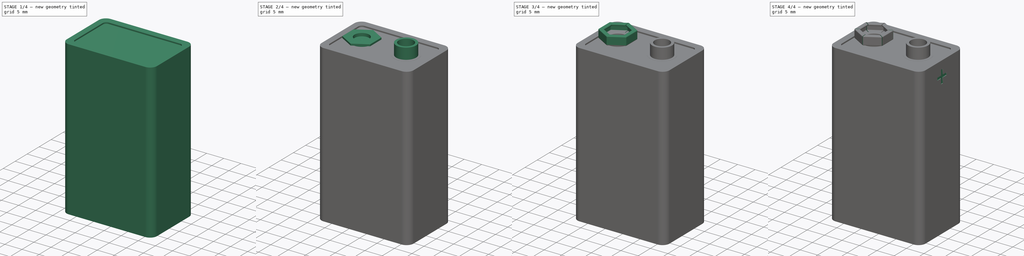
[diagram: build sequence overview — one tinted view per stage of 4, left to right]
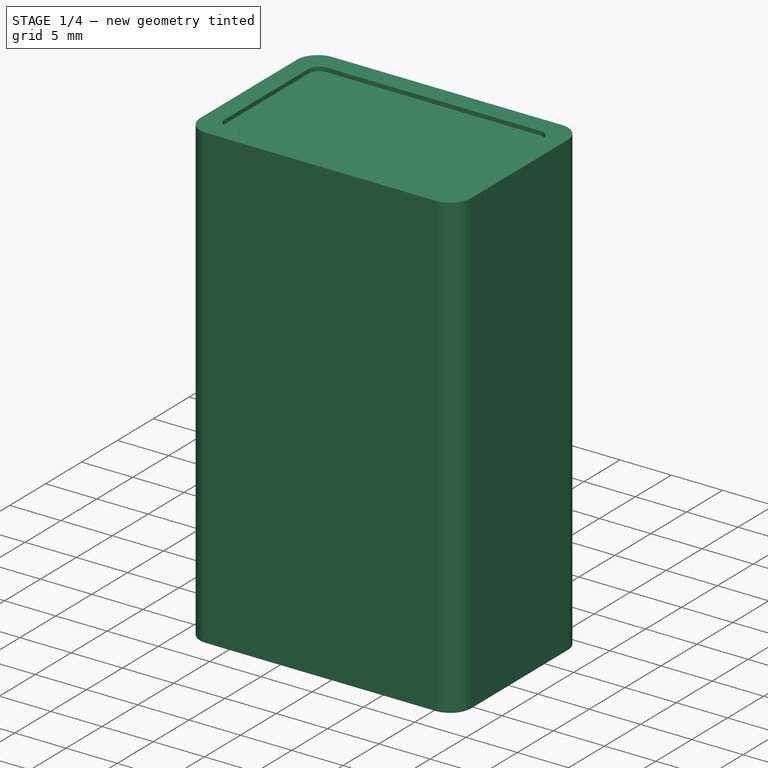
[diagram: stage 1 of 4 — iso view after this stage's code; geometry added in this stage tinted green]
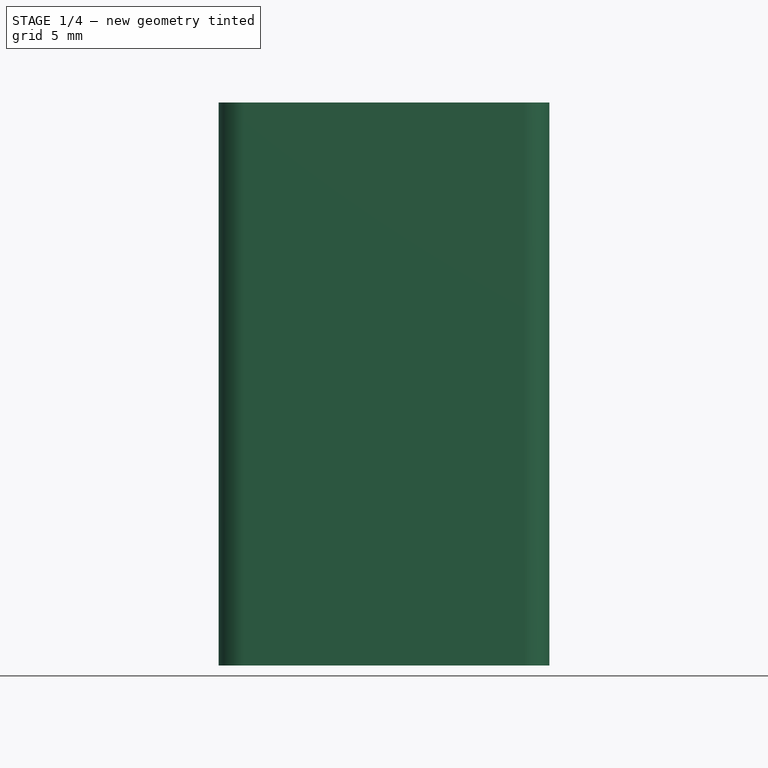
[diagram: stage 1 of 4 — front view after this stage's code; geometry added in this stage tinted green]
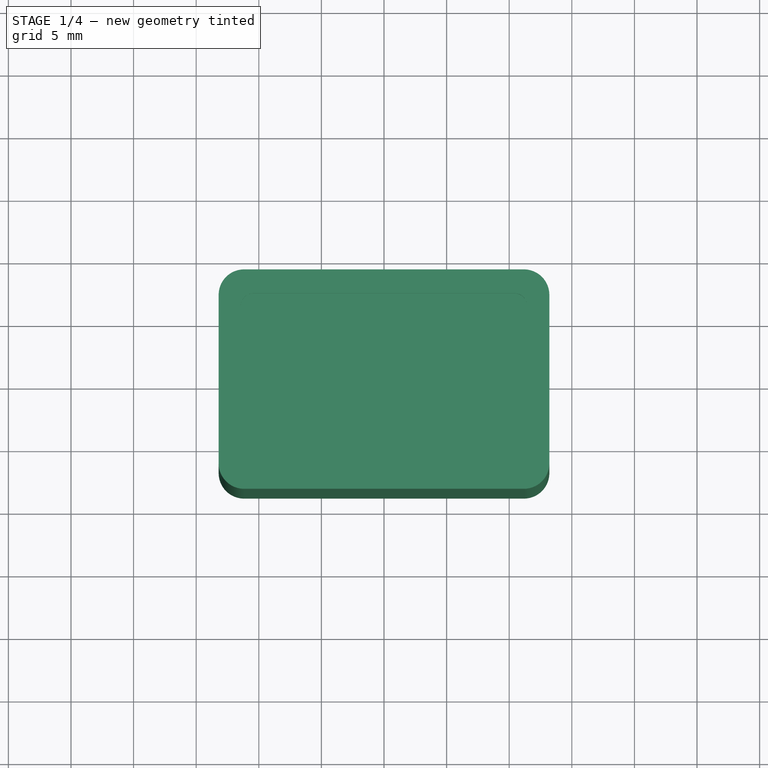
[diagram: stage 1 of 4 — top view after this stage's code; geometry added in this stage tinted green]
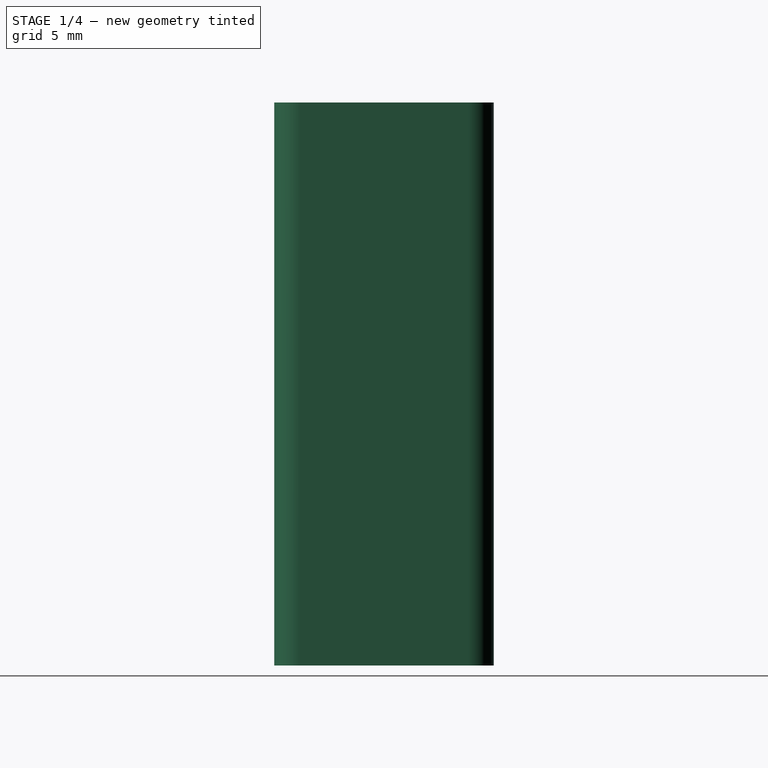
[diagram: stage 1 of 4 — right view after this stage's code; geometry added in this stage tinted green]
FCSTD DOCUMENT  (FreeCAD 0.18.4R)
Label: Baterry 9 volts
License: CreativeCommons Attribution
LicenseURL: http://creativecommons.org/licenses/by/4.0/
objects: Sketcher::SketchObject×10, PartDesign::Pad×4, PartDesign::Pocket×4, PartDesign::Line×2, PartDesign::Revolution×2, PartDesign::Mirrored×1, PartDesign::Fillet×1, PartDesign::PolarPattern×1, PartDesign::Body×1, App::Part×1
note: 36 computed .brp shape members not serialized (recipe doc carries the construction recipe); baked Part::Feature solids carry a one-line shape summary decoded from their .brp

FEATURE [Sketcher::SketchObject] Sketch
  MapMode = 5
  Support = -> [XY_Plane001]
  sketch-geometry (8):
    g0: LineSegment StartX=-11.173 StartY=8.763 StartZ=0 EndX=11.173 EndY=8.763 EndZ=0
    g1: LineSegment StartX=13.205 StartY=6.731 StartZ=0 EndX=13.205 EndY=-6.731 EndZ=0
    g2: LineSegment StartX=11.173 StartY=-8.763 StartZ=0 EndX=-11.173 EndY=-8.763 EndZ=0
    g3: LineSegment StartX=-13.205 StartY=-6.731 StartZ=0 EndX=-13.205 EndY=6.731 EndZ=0
    g4: ArcOfCircle CenterX=11.173 CenterY=6.731 CenterZ=0 NormalX=0 NormalY=0 NormalZ=1 AngleXU=0 Radius=2.032 StartAngle=1.78e-14 EndAngle=1.5708
    g5: ArcOfCircle CenterX=11.173 CenterY=-6.731 CenterZ=0 NormalX=0 NormalY=0 NormalZ=1 AngleXU=0 Radius=2.032 StartAngle=4.71239 EndAngle=6.28319
    g6: ArcOfCircle CenterX=-11.173 CenterY=-6.731 CenterZ=0 NormalX=0 NormalY=0 NormalZ=1 AngleXU=0 Radius=2.032 StartAngle=3.14159 EndAngle=4.71239
    g7: ArcOfCircle CenterX=-11.173 CenterY=6.731 CenterZ=0 NormalX=0 NormalY=0 NormalZ=1 AngleXU=0 Radius=2.032 StartAngle=1.5708 EndAngle=3.14159
  constraints (19):
    c: Horizontal(g0)
    c: Horizontal(g2)
    c: Vertical(g1)
    c: Vertical(g3)
    c: Tangent(g0,g4) = 1.5708
    c: Tangent(g1,g4) = 1.5708
    c: Tangent(g1,g5) = 1.5708
    c: Tangent(g2,g5) = 1.5708
    c: Tangent(g2,g6) = 1.5708
    c: Tangent(g3,g6) = 1.5708
    c: Tangent(g0,g7) = 1.5708
    c: Tangent(g3,g7) = 1.5708
    c: Equal(g7,g4)
    c: Equal(g4,g5)
    c: Equal(g5,g6)
    c: Symmetric(g7,g5,g-1)
    c: DistanceX(g3,g1) = 26.41
    c: DistanceY(g2,g0) = 17.526
    c: Radius(g7) = 2.032
FEATURE [PartDesign::Pad] Pad
  Length = 44.96
  Length2 = 100
  Midplane = true
  Profile = -> Sketch
  Refine = true
  Type = 0
FEATURE [Sketcher::SketchObject] Sketch001
  MapMode = 5
  Placement = pos=(0,0,-22.48) rot=(1,0,0;3.14159rad)
  Support = -> [Pad]
  sketch-geometry (8):
    g0: LineSegment StartX=-10.42 StartY=6.855 StartZ=0 EndX=10.42 EndY=6.855 EndZ=0
    g1: LineSegment StartX=11.43 StartY=5.845 StartZ=0 EndX=11.43 EndY=-5.845 EndZ=0
    g2: LineSegment StartX=10.42 StartY=-6.855 StartZ=0 EndX=-10.42 EndY=-6.855 EndZ=0
    g3: LineSegment StartX=-11.43 StartY=-5.845 StartZ=0 EndX=-11.43 EndY=5.845 EndZ=0
    g4: ArcOfCircle CenterX=10.42 CenterY=5.845 CenterZ=0 NormalX=0 NormalY=0 NormalZ=1 AngleXU=0 Radius=1.01 StartAngle=8.18e-14 EndAngle=1.5708
    g5: ArcOfCircle CenterX=10.42 CenterY=-5.845 CenterZ=0 NormalX=0 NormalY=0 NormalZ=1 AngleXU=0 Radius=1.01 StartAngle=4.71239 EndAngle=6.28319
    g6: ArcOfCircle CenterX=-10.42 CenterY=-5.845 CenterZ=0 NormalX=0 NormalY=0 NormalZ=1 AngleXU=0 Radius=1.01 StartAngle=3.14159 EndAngle=4.71239
    g7: ArcOfCircle CenterX=-10.42 CenterY=5.845 CenterZ=0 NormalX=0 NormalY=0 NormalZ=1 AngleXU=0 Radius=1.01 StartAngle=1.5708 EndAngle=3.14159
  constraints (19):
    c: Horizontal(g0)
    c: Horizontal(g2)
    c: Vertical(g1)
    c: Vertical(g3)
    c: Tangent(g0,g4) = 1.5708
    c: Tangent(g1,g4) = 1.5708
    c: Tangent(g2,g5) = 1.5708
    c: Tangent(g1,g5) = 1.5708
    c: Tangent(g2,g6) = 1.5708
    c: Tangent(g3,g6) = 1.5708
    c: Tangent(g0,g7) = 1.5708
    c: Tangent(g3,g7) = 1.5708
    c: Equal(g7,g4)
    c: Equal(g4,g5)
    c: Equal(g5,g6)
    c: Symmetric(g5,g7,g-1)
    c: DistanceX(g3,g1) = 22.86
    c: DistanceY(g2,g0) = 13.71
    c: Radius(g7) = 1.01
FEATURE [PartDesign::Pocket] Pocket
  BaseFeature = -> Pad
  Length = 0.4
  Length2 = 100
  Profile = -> Sketch001
  Refine = true
  Type = 0
FEATURE [PartDesign::Mirrored] Mirrored
  BaseFeature = -> Pocket
  MirrorPlane = -> XY_Plane001
  Originals = -> [Pocket]
  Refine = true
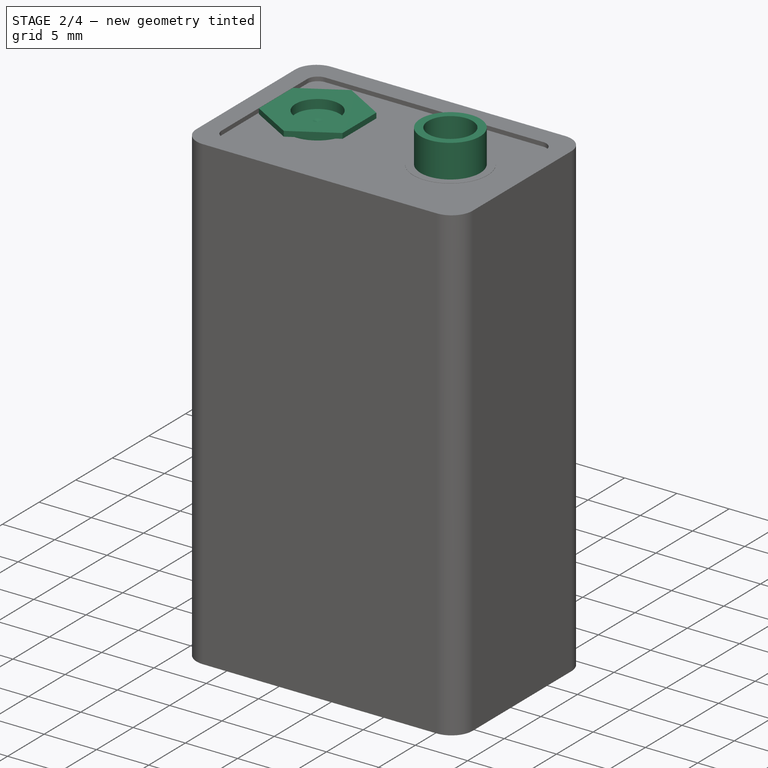
[diagram: stage 2 of 4 — iso view after this stage's code; geometry added in this stage tinted green]
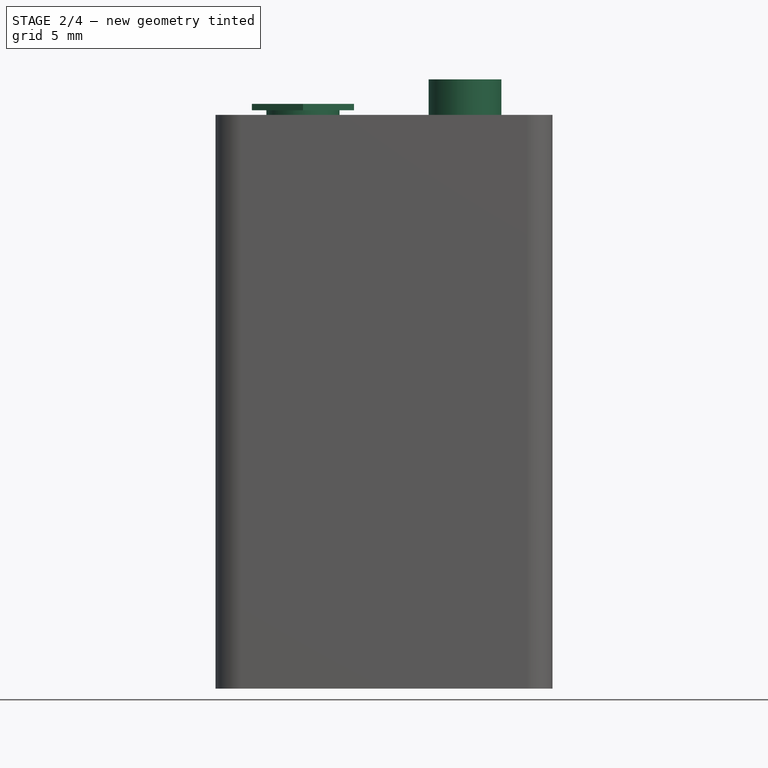
[diagram: stage 2 of 4 — front view after this stage's code; geometry added in this stage tinted green]
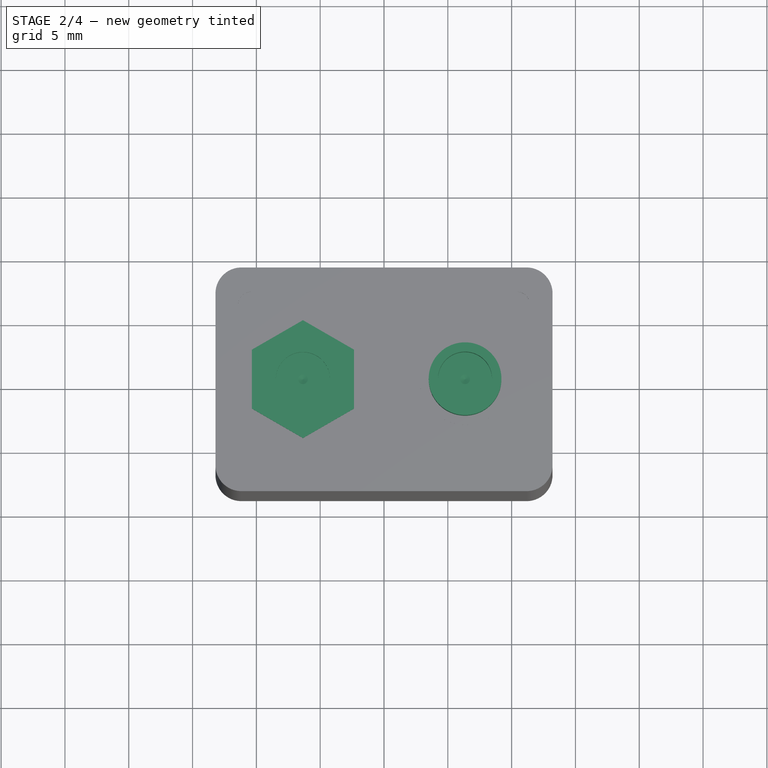
[diagram: stage 2 of 4 — top view after this stage's code; geometry added in this stage tinted green]
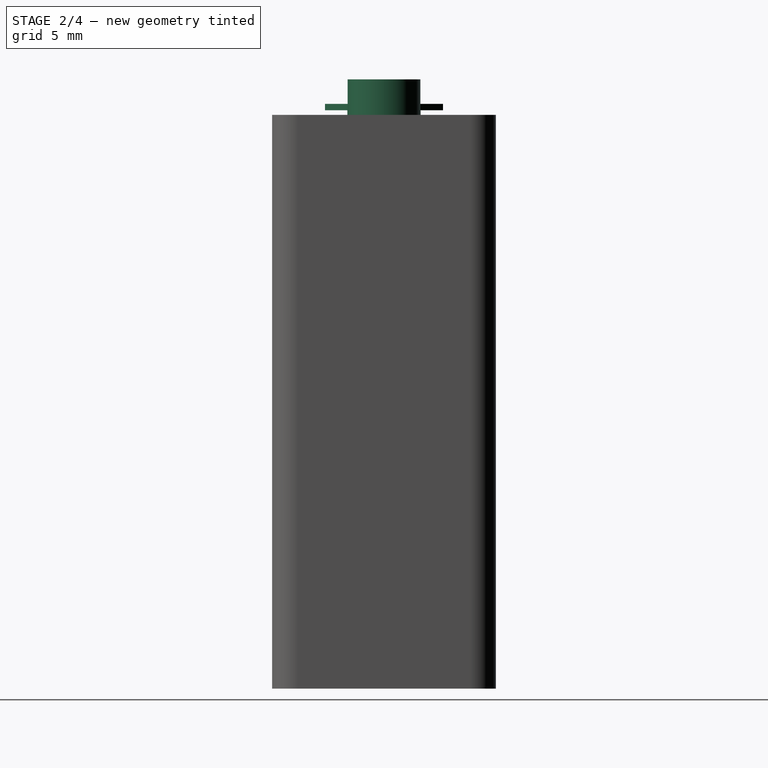
[diagram: stage 2 of 4 — right view after this stage's code; geometry added in this stage tinted green]
FEATURE [Sketcher::SketchObject] Sketch002
  ExternalGeometry = -> [Mirrored]
  MapMode = 5
  Placement = pos=(0,0,0) rot=(1,0,0;1.5708rad)
  Support = -> [XZ_Plane001]
  sketch-geometry (12):
    g0: LineSegment [constr] StartX=-6.35 StartY=23.845 StartZ=0 EndX=-6.35 EndY=21.845 EndZ=0
    g1: LineSegment [constr] StartX=-6.35 StartY=21.845 StartZ=0 EndX=6.35 EndY=21.845 EndZ=0
    g2: LineSegment [constr] StartX=6.35 StartY=21.845 StartZ=0 EndX=6.35 EndY=23.845 EndZ=0
    g3: LineSegment StartX=6.35 StartY=21.845 StartZ=0 EndX=6.35 EndY=22.353 EndZ=0
    g4: LineSegment StartX=6.35 StartY=22.353 StartZ=0 EndX=6.73 EndY=22.48 EndZ=0
    g5: LineSegment StartX=6.73 StartY=22.48 StartZ=0 EndX=8.47 EndY=22.48 EndZ=0
    g6: LineSegment StartX=8.47 StartY=22.48 StartZ=0 EndX=8.47 EndY=25.265 EndZ=0
    g7: LineSegment StartX=8.47 StartY=25.265 StartZ=0 EndX=9.2 EndY=25.265 EndZ=0
    g8: LineSegment StartX=9.2 StartY=25.265 StartZ=0 EndX=9.2 EndY=22.099 EndZ=0
    g9: LineSegment StartX=9.2 StartY=22.099 StartZ=0 EndX=9.906 EndY=22.099 EndZ=0
    g10: LineSegment StartX=9.906 StartY=22.099 StartZ=0 EndX=9.906 EndY=21.845 EndZ=0
    g11: LineSegment StartX=9.906 StartY=21.845 StartZ=0 EndX=6.35 EndY=21.845 EndZ=0
  constraints (35):
    c: Vertical(g0)
    c: Coincident(g0,g1)
    c: Coincident(g1,g2)
    c: Vertical(g2)
    c: Equal(g2,g0)
    c: Coincident(g1,g3)
    c: PointOnObject(g3,g2)
    c: Coincident(g3,g4)
    c: Coincident(g4,g5)
    c: Horizontal(g5)
    c: Coincident(g5,g6)
    c: Vertical(g6)
    c: Coincident(g6,g7)
    c: Horizontal(g7)
    c: Coincident(g7,g8)
    c: Vertical(g8)
    c: Coincident(g8,g9)
    c: Horizontal(g9)
    c: Coincident(g9,g10)
    c: Coincident(g10,g11)
    c: Coincident(g11,g3)
    c: Horizontal(g11)
    c: DistanceY(g3,g3) = 0.508
    c: PointOnObject(g4,g-3)
    c: Vertical(g10)
    c: DistanceY(g10,g10) = 0.254
    c: DistanceX(g3,g4) = 0.38
    c: DistanceY(g3,g4) = 0.635
    c: DistanceX(g11,g11) = 3.556
    c: DistanceX(g2,g7) = 2.85
    c: DistanceX(g2,g6) = 2.12
    c: Symmetric(g0,g3,g-2)
    c: DistanceX(g1,g1) = 12.7
    c: DistanceY(g10,g7) = 3.42
    c: DistanceY(g0,g0) = 2
FEATURE [PartDesign::Line] DatumLine
  AttacherType = Attacher::AttachEngineLine
  MapMode = 29
  Placement = pos=(6.35,0,-3.2e-14) rot=(0,0,1;0rad)
  Support = -> [Sketch002]
FEATURE [PartDesign::Revolution] Revolution
  Angle = 360
  Axis = (5.2e-15,2e-16,1)
  Base = (6.35,0,-3.2e-14)
  BaseFeature = -> Mirrored
  Profile = -> Sketch002
  ReferenceAxis = -> DatumLine
  Refine = true
  Reversed = true
FEATURE [Sketcher::SketchObject] Sketch003
  ExternalGeometry = -> [Revolution]
  MapMode = 5
  Placement = pos=(0,0,0) rot=(1,0,0;1.5708rad)
  Support = -> [XZ_Plane001]
  sketch-geometry (10):
    g0: LineSegment [constr] StartX=6.35 StartY=22.353 StartZ=0 EndX=6.35 EndY=22.08 EndZ=0
    g1: LineSegment [constr] StartX=6.35 StartY=22.08 StartZ=0 EndX=-6.35 EndY=22.08 EndZ=0
    g2: LineSegment [constr] StartX=-6.35 StartY=22.08 StartZ=0 EndX=-6.35 EndY=22.353 EndZ=0
    g3: LineSegment StartX=-6.35 StartY=22.08 StartZ=0 EndX=-6.35 EndY=22.353 EndZ=0
    g4: LineSegment StartX=-6.35 StartY=22.353 StartZ=0 EndX=-6.73 EndY=22.48 EndZ=0
    g5: LineSegment StartX=-6.73 StartY=22.48 StartZ=0 EndX=-8.47 EndY=22.48 EndZ=0
    g6: LineSegment StartX=-8.47 StartY=22.48 StartZ=0 EndX=-8.47 EndY=22.842 EndZ=0
    g7: LineSegment StartX=-8.47 StartY=22.842 StartZ=0 EndX=-9.2175 EndY=22.842 EndZ=0
    g8: LineSegment StartX=-9.2175 StartY=22.842 StartZ=0 EndX=-9.2175 EndY=22.08 EndZ=0
    g9: LineSegment StartX=-9.2175 StartY=22.08 StartZ=0 EndX=-6.35 EndY=22.08 EndZ=0
  constraints (29):
    c: Coincident(g0,g-3)
    c: Vertical(g0)
    c: Coincident(g0,g1)
    c: Horizontal(g1)
    c: Coincident(g1,g2)
    c: Vertical(g2)
    c: Coincident(g1,g3)
    c: PointOnObject(g3,g2)
    c: Coincident(g3,g4)
    c: Coincident(g4,g5)
    c: Horizontal(g5)
    c: Coincident(g5,g6)
    c: Vertical(g6)
    c: Coincident(g6,g7)
    c: Horizontal(g7)
    c: Coincident(g7,g8)
    c: Vertical(g8)
    c: Coincident(g8,g9)
    c: Coincident(g9,g3)
    c: Horizontal(g9)
    c: DistanceX(g9,g9) = 2.8675
    c: DistanceY(g8,g8) = 0.762
    c: Horizontal(g0,g3)
    c: PointOnObject(g4,g-4)
    c: DistanceX(g1,g1) = 12.7
    c: Equal(g2,g0)
    c: PointOnObject(g3,g-5)
    c: DistanceX(g6,g3) = 2.12
    c: DistanceX(g4,g3) = 0.38
FEATURE [PartDesign::Line] DatumLine001
  AttacherType = Attacher::AttachEngineLine
  MapMode = 29
  Placement = pos=(-6.35,0,3.517e-13) rot=(0,0,1;0rad)
  Support = -> [Sketch003]
FEATURE [PartDesign::Revolution] Revolution001
  Angle = 360
  Axis = (5.53e-14,2e-16,1)
  Base = (-6.35,0,3.517e-13)
  BaseFeature = -> Revolution
  Profile = -> Sketch003
  ReferenceAxis = -> DatumLine001
  Refine = true
FEATURE [Sketcher::SketchObject] Sketch004
  ExternalGeometry = -> [Revolution001]
  MapMode = 5
  Placement = pos=(1.2634e-12,5e-15,22.842) rot=(0,0,1;0rad)
  Support = -> [Revolution001]
  sketch-geometry (8):
    g0: Circle CenterX=-6.35 CenterY=0 CenterZ=0 NormalX=0 NormalY=0 NormalZ=1 AngleXU=0 Radius=2.12
    g1: LineSegment StartX=-6.35 StartY=4.6188 StartZ=0 EndX=-10.35 EndY=2.3094 EndZ=0
    g2: LineSegment StartX=-10.35 StartY=2.3094 StartZ=0 EndX=-10.35 EndY=-2.3094 EndZ=0
    g3: LineSegment StartX=-10.35 StartY=-2.3094 StartZ=0 EndX=-6.35 EndY=-4.6188 EndZ=0
    g4: LineSegment StartX=-6.35 StartY=-4.6188 StartZ=0 EndX=-2.35 EndY=-2.3094 EndZ=0
    g5: LineSegment StartX=-2.35 StartY=-2.3094 StartZ=0 EndX=-2.35 EndY=2.3094 EndZ=0
    g6: LineSegment StartX=-2.35 StartY=2.3094 StartZ=0 EndX=-6.35 EndY=4.6188 EndZ=0
    g7: Circle [constr] CenterX=-6.35 CenterY=0 CenterZ=0 NormalX=0 NormalY=0 NormalZ=1 AngleXU=0 Radius=4.6188
  constraints (18):
    c: Coincident(g0,g-3)
    c: Tangent(g0,g-3)
    c: Coincident(g1,g2)
    c: Coincident(g2,g3)
    c: Coincident(g3,g4)
    c: Coincident(g4,g5)
    c: Coincident(g5,g6)
    c: Coincident(g6,g1)
    c: Equal(g1, g2-g6) x5
    c: PointOnObject(g1,g7)
    c: PointOnObject(g2,g7)
    c: PointOnObject(g3,g7)
    c: PointOnObject(g4,g7)
    c: PointOnObject(g5,g7)
    c: PointOnObject(g6,g7)
    c: Coincident(g7,g0)
    c: Horizontal(g5,g1)
    c: DistanceX(g1,g5) = 8
FEATURE [PartDesign::Pad] Pad001
  BaseFeature = -> Revolution001
  Length = 0.5
  Length2 = 100
  Profile = -> Sketch004
  Refine = true
  Type = 0
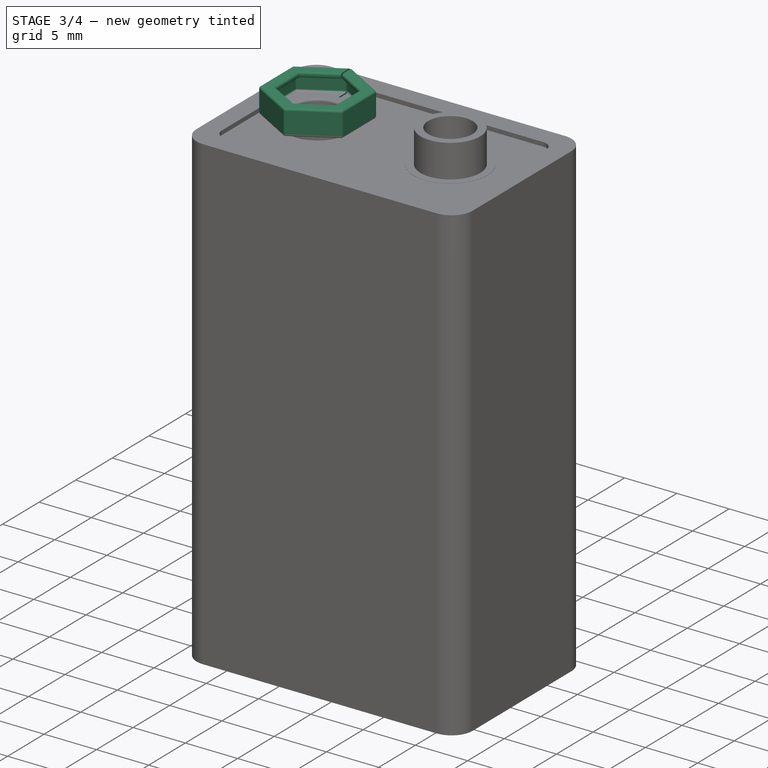
[diagram: stage 3 of 4 — iso view after this stage's code; geometry added in this stage tinted green]
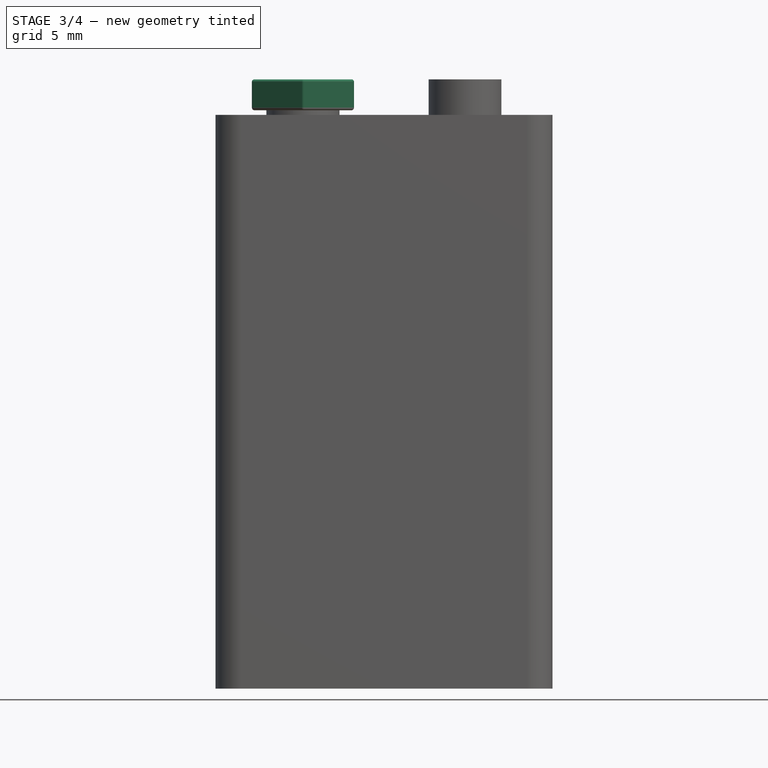
[diagram: stage 3 of 4 — front view after this stage's code; geometry added in this stage tinted green]
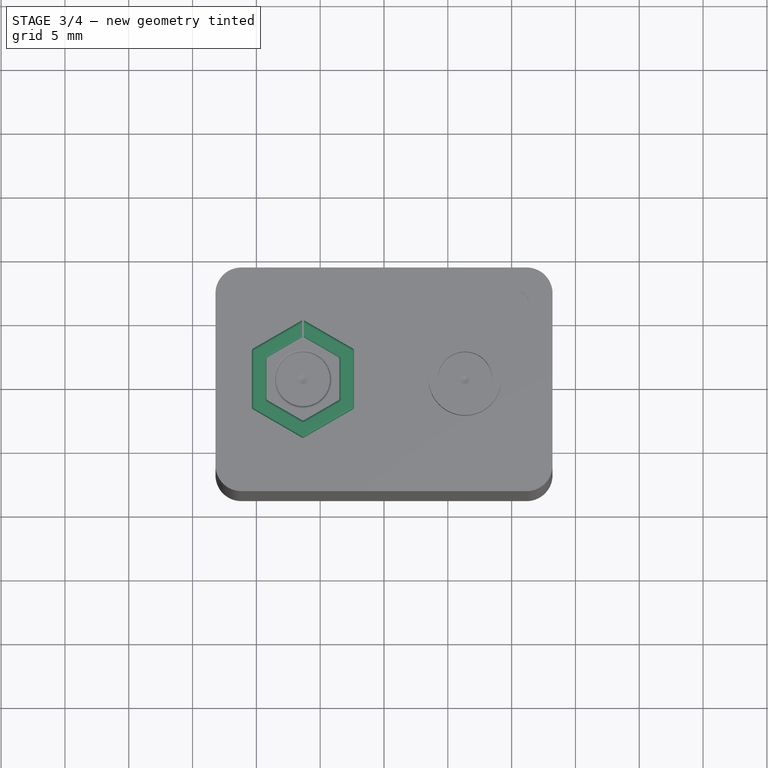
[diagram: stage 3 of 4 — top view after this stage's code; geometry added in this stage tinted green]
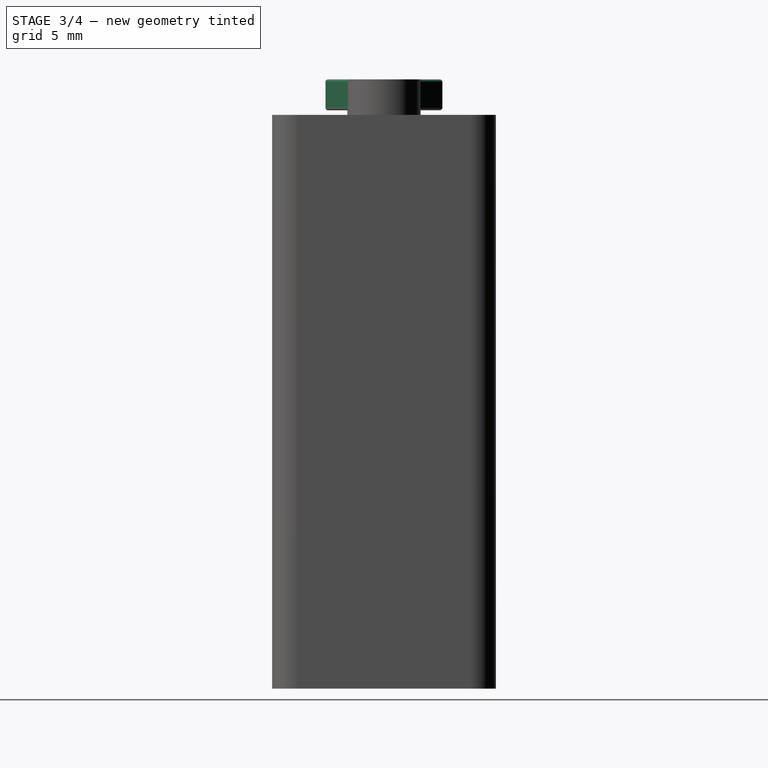
[diagram: stage 3 of 4 — right view after this stage's code; geometry added in this stage tinted green]
FEATURE [Sketcher::SketchObject] Sketch005
  ExternalGeometry = -> [Pad001]
  MapMode = 5
  Placement = pos=(1.2906e-12,3e-15,23.342) rot=(0,0,1;0rad)
  Support = -> [Pad001]
  sketch-geometry (14):
    g0: LineSegment StartX=-6.35 StartY=4.6188 StartZ=0 EndX=-10.35 EndY=2.3094 EndZ=0
    g1: LineSegment StartX=-10.35 StartY=2.3094 StartZ=0 EndX=-10.35 EndY=-2.3094 EndZ=0
    g2: LineSegment StartX=-10.35 StartY=-2.3094 StartZ=0 EndX=-6.35 EndY=-4.6188 EndZ=0
    g3: LineSegment StartX=-6.35 StartY=-4.6188 StartZ=0 EndX=-2.35 EndY=-2.3094 EndZ=0
    g4: LineSegment StartX=-2.35 StartY=-2.3094 StartZ=0 EndX=-2.35 EndY=2.3094 EndZ=0
    g5: LineSegment StartX=-2.35 StartY=2.3094 StartZ=0 EndX=-6.35 EndY=4.6188 EndZ=0
    g6: Circle [constr] CenterX=-6.35 CenterY=2.2e-15 CenterZ=0 NormalX=0 NormalY=0 NormalZ=1 AngleXU=0 Radius=4.6188
    g7: LineSegment StartX=-6.35 StartY=4.04145 StartZ=0 EndX=-9.85 EndY=2.02073 EndZ=0
    g8: LineSegment StartX=-9.85 StartY=2.02073 StartZ=0 EndX=-9.85 EndY=-2.02073 EndZ=0
    g9: LineSegment StartX=-9.85 StartY=-2.02073 StartZ=0 EndX=-6.35 EndY=-4.04145 EndZ=0
    g10: LineSegment StartX=-6.35 StartY=-4.04145 StartZ=0 EndX=-2.85 EndY=-2.02073 EndZ=0
    g11: LineSegment StartX=-2.85 StartY=-2.02073 StartZ=0 EndX=-2.85 EndY=2.02073 EndZ=0
    g12: LineSegment StartX=-2.85 StartY=2.02073 StartZ=0 EndX=-6.35 EndY=4.04145 EndZ=0
    g13: Circle [constr] CenterX=-6.35 CenterY=2.2e-15 CenterZ=0 NormalX=0 NormalY=0 NormalZ=1 AngleXU=0 Radius=4.04145
  constraints (31):
    c: Coincident(g0,g1)
    c: Coincident(g1,g2)
    c: Coincident(g2,g3)
    c: Coincident(g3,g4)
    c: Coincident(g4,g5)
    c: Coincident(g5,g0)
    c: Equal(g0, g1-g5) x5
    c: PointOnObject(g0,g6)
    c: PointOnObject(g1,g6)
    c: PointOnObject(g2,g6)
    c: PointOnObject(g3,g6)
    c: PointOnObject(g4,g6)
    c: PointOnObject(g5,g6)
    c: Coincident(g6,g-3)
    c: Coincident(g5,g-4)
    c: Coincident(g7,g8)
    c: Coincident(g8,g9)
    c: Coincident(g9,g10)
    c: Coincident(g10,g11)
    c: Coincident(g11,g12)
    c: Coincident(g12,g7)
    c: Equal(g7, g8-g12) x5
    c: PointOnObject(g7,g13)
    c: PointOnObject(g8,g13)
    c: PointOnObject(g9,g13)
    c: PointOnObject(g10,g13)
    c: PointOnObject(g11,g13)
    c: PointOnObject(g12,g13)
    c: Coincident(g13,g6)
    c: Horizontal(g7,g11)
    c: DistanceX(g0,g7) = 0.5
FEATURE [PartDesign::Pad] Pad002
  BaseFeature = -> Pad001
  Length = 10
  Length2 = 100
  Profile = -> Sketch005
  Refine = true
  Type = 3
  UpToFace = -> Pad001 [Face43]
FEATURE [Sketcher::SketchObject] Sketch006
  ExternalGeometry = -> [Pad002]
  MapMode = 5
  Placement = pos=(1.326e-13,5.6e-15,25.265) rot=(0,0,1;0rad)
  Support = -> [Pad002]
  sketch-geometry (14):
    g0: LineSegment StartX=-6.35 StartY=4.6188 StartZ=0 EndX=-10.35 EndY=2.3094 EndZ=0
    g1: LineSegment StartX=-10.35 StartY=2.3094 StartZ=0 EndX=-10.35 EndY=-2.3094 EndZ=0
    g2: LineSegment StartX=-10.35 StartY=-2.3094 StartZ=0 EndX=-6.35 EndY=-4.6188 EndZ=0
    g3: LineSegment StartX=-6.35 StartY=-4.6188 StartZ=0 EndX=-2.35 EndY=-2.3094 EndZ=0
    g4: LineSegment StartX=-2.35 StartY=-2.3094 StartZ=0 EndX=-2.35 EndY=2.3094 EndZ=0
    g5: LineSegment StartX=-2.35 StartY=2.3094 StartZ=0 EndX=-6.35 EndY=4.6188 EndZ=0
    g6: Circle [constr] CenterX=-6.35 CenterY=0 CenterZ=0 NormalX=0 NormalY=0 NormalZ=1 AngleXU=0 Radius=4.6188
    g7: LineSegment StartX=-6.35 StartY=3.29667 StartZ=0 EndX=-9.205 EndY=1.64834 EndZ=0
    g8: LineSegment StartX=-9.205 StartY=1.64834 StartZ=0 EndX=-9.205 EndY=-1.64834 EndZ=0
    g9: LineSegment StartX=-9.205 StartY=-1.64834 StartZ=0 EndX=-6.35 EndY=-3.29667 EndZ=0
    g10: LineSegment StartX=-6.35 StartY=-3.29667 StartZ=0 EndX=-3.495 EndY=-1.64834 EndZ=0
    g11: LineSegment StartX=-3.495 StartY=-1.64834 StartZ=0 EndX=-3.495 EndY=1.64834 EndZ=0
    g12: LineSegment StartX=-3.495 StartY=1.64834 StartZ=0 EndX=-6.35 EndY=3.29667 EndZ=0
    g13: Circle [constr] CenterX=-6.35 CenterY=0 CenterZ=0 NormalX=0 NormalY=0 NormalZ=1 AngleXU=0 Radius=3.29667
  constraints (31):
    c: Coincident(g0,g1)
    c: Coincident(g1,g2)
    c: Coincident(g2,g3)
    c: Coincident(g3,g4)
    c: Coincident(g4,g5)
    c: Coincident(g5,g0)
    c: Equal(g0, g1-g5) x5
    c: PointOnObject(g0,g6)
    c: PointOnObject(g1,g6)
    c: PointOnObject(g2,g6)
    c: PointOnObject(g3,g6)
    c: PointOnObject(g4,g6)
    c: PointOnObject(g5,g6)
    c: Coincident(g6,g-3)
    c: Coincident(g5,g-4)
    c: Coincident(g7,g8)
    c: Coincident(g8,g9)
    c: Coincident(g9,g10)
    c: Coincident(g10,g11)
    c: Coincident(g11,g12)
    c: Coincident(g12,g7)
    c: Equal(g7, g8-g12) x5
    c: PointOnObject(g7,g13)
    c: PointOnObject(g8,g13)
    c: PointOnObject(g9,g13)
    c: PointOnObject(g10,g13)
    c: PointOnObject(g11,g13)
    c: PointOnObject(g12,g13)
    c: Coincident(g13,g6)
    c: Horizontal(g7,g11)
    c: DistanceX(g7,g11) = 5.71
FEATURE [PartDesign::Pad] Pad003
  BaseFeature = -> Pad002
  Length = 0.5
  Length2 = 100
  Profile = -> Sketch006
  Refine = true
  Reversed = true
  Type = 0
FEATURE [PartDesign::Fillet] Fillet
  Base = -> Pad003 [Face4,Face18,Face12,Face14,Face16,Face15,Face17,Face13,Face58,Face57,Face59,Face60,Face61,Face19]
  BaseFeature = -> Pad003
  Radius = 0.2
FEATURE [Sketcher::SketchObject] Sketch007
  ExternalGeometry = -> [Fillet]
  MapMode = 5
  Placement = pos=(1.326e-13,5.6e-15,25.265) rot=(0,0,1;0rad)
  Support = -> [Fillet]
  sketch-geometry (5):
    g0: LineSegment StartX=-6.425 StartY=4.77 StartZ=0 EndX=-6.275 EndY=4.77 EndZ=0
    g1: LineSegment StartX=-6.275 StartY=4.77 StartZ=0 EndX=-6.275 EndY=3 EndZ=0
    g2: LineSegment StartX=-6.275 StartY=3 StartZ=0 EndX=-6.425 EndY=3 EndZ=0
    g3: LineSegment StartX=-6.425 StartY=3 StartZ=0 EndX=-6.425 EndY=4.77 EndZ=0
    g4: LineSegment [constr] StartX=-6.35 StartY=3.81051 StartZ=0 EndX=-6.35 EndY=-3.81051 EndZ=0
  constraints (13):
    c: Coincident(g0,g1)
    c: Coincident(g1,g2)
    c: Coincident(g2,g3)
    c: Coincident(g3,g0)
    c: Horizontal(g0)
    c: Vertical(g1)
    c: Vertical(g3)
    c: Coincident(g4,g-3)
    c: Coincident(g4,g-4)
    c: Symmetric(g1,g2,g4)
    c: DistanceY(g-5,g1) = 3
    c: DistanceX(g0,g0) = 0.15
    c: DistanceY(g1,g1) = 1.77
FEATURE [PartDesign::Pocket] Pocket001
  BaseFeature = -> Fillet
  Length = 2.79
  Length2 = 100
  Profile = -> Sketch007
  Refine = true
  Type = 0
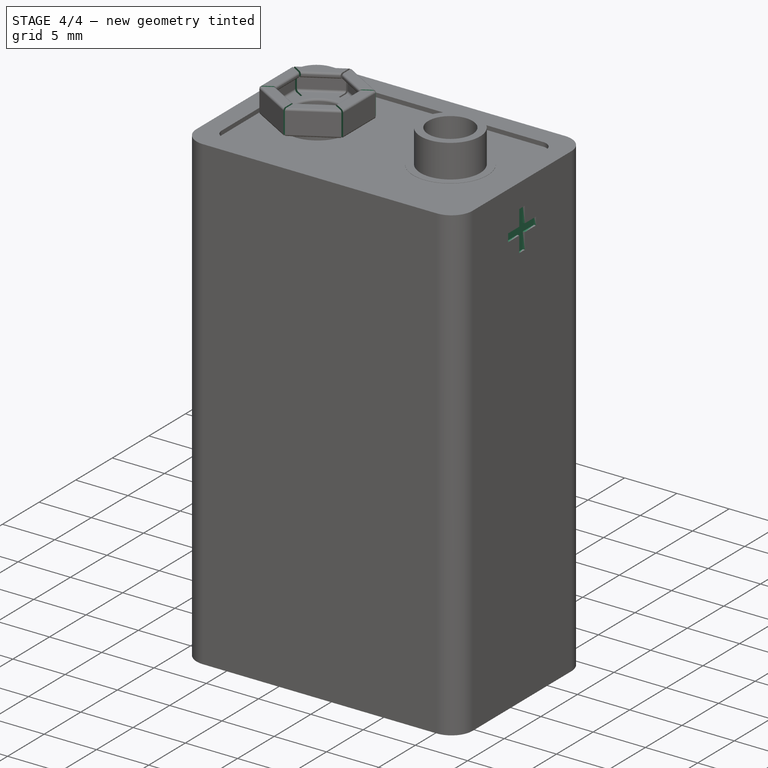
[diagram: stage 4 of 4 — iso view after this stage's code; geometry added in this stage tinted green]
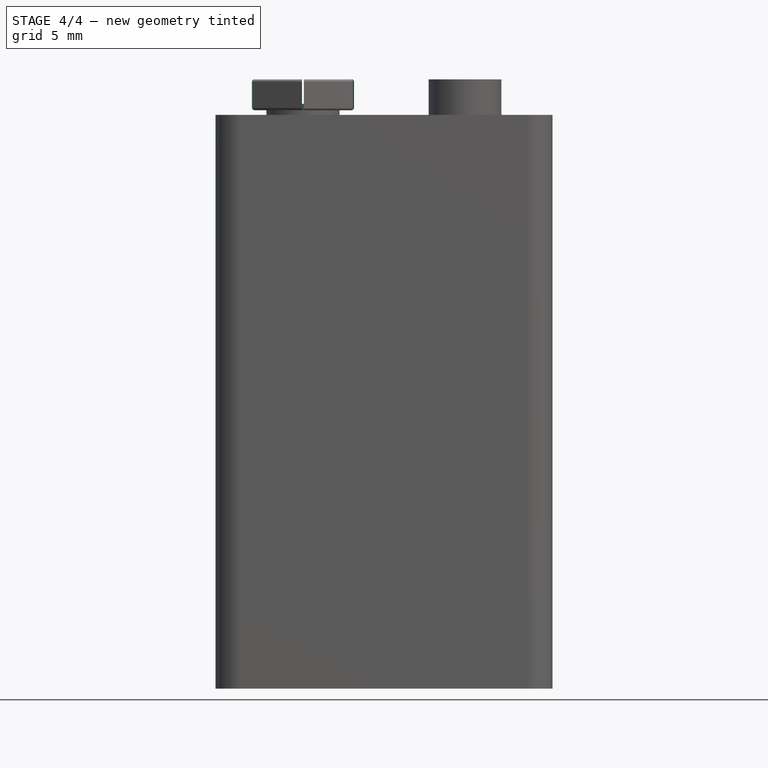
[diagram: stage 4 of 4 — front view after this stage's code; geometry added in this stage tinted green]
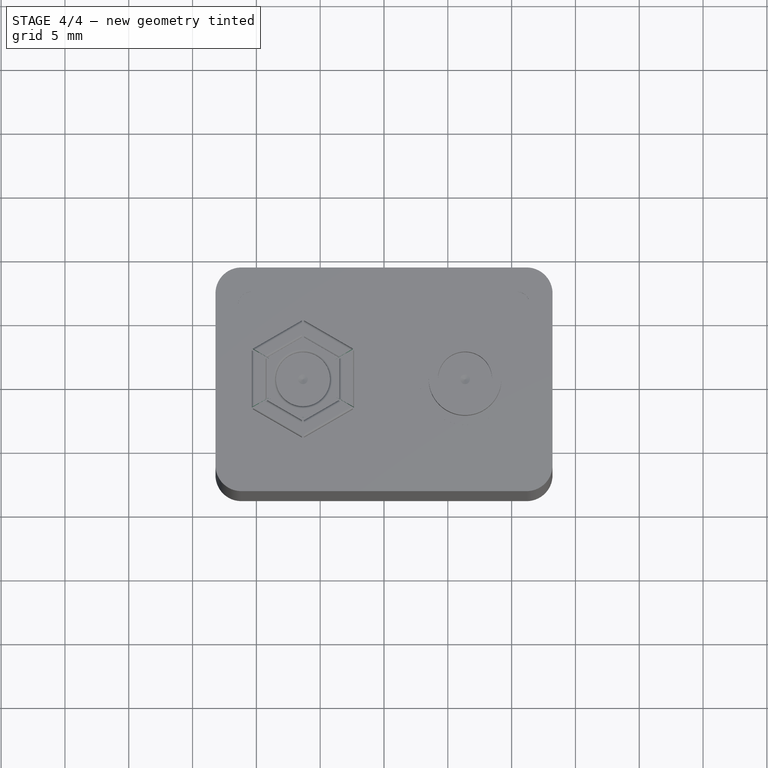
[diagram: stage 4 of 4 — top view after this stage's code; geometry added in this stage tinted green]
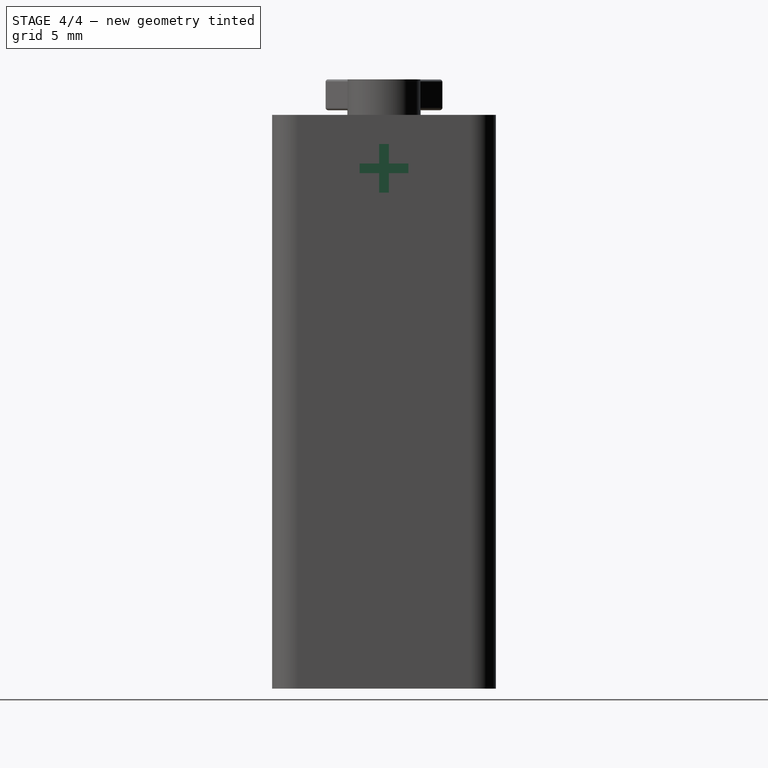
[diagram: stage 4 of 4 — right view after this stage's code; geometry added in this stage tinted green]
FEATURE [PartDesign::PolarPattern] PolarPattern
  Angle = 360
  Axis = -> DatumLine001
  BaseFeature = -> Pocket001
  Occurrences = 6
  Originals = -> [Pocket001]
  Refine = true
FEATURE [Sketcher::SketchObject] Sketch008
  ExternalGeometry = -> [PolarPattern]
  MapMode = 5
  Placement = pos=(-13.205,0,0) rot=(0.57735,-0.57735,-0.57735;2.0944rad)
  Support = -> [PolarPattern]
  sketch-geometry (4):
    g0: LineSegment StartX=-1.905 StartY=18.67 StartZ=0 EndX=1.905 EndY=18.67 EndZ=0
    g1: LineSegment StartX=1.905 StartY=18.67 StartZ=0 EndX=1.905 EndY=17.908 EndZ=0
    g2: LineSegment StartX=1.905 StartY=17.908 StartZ=0 EndX=-1.905 EndY=17.908 EndZ=0
    g3: LineSegment StartX=-1.905 StartY=17.908 StartZ=0 EndX=-1.905 EndY=18.67 EndZ=0
  constraints (11):
    c: Coincident(g0,g1)
    c: Coincident(g1,g2)
    c: Coincident(g2,g3)
    c: Coincident(g3,g0)
    c: Horizontal(g2)
    c: Vertical(g1)
    c: Vertical(g3)
    c: Symmetric(g0,g0,g-2)
    c: DistanceY(g0,g-3) = 3.81
    c: DistanceY(g3,g3) = 0.762
    c: DistanceX(g0,g0) = 3.81
FEATURE [PartDesign::Pocket] Pocket002
  BaseFeature = -> PolarPattern
  Length = 0.2
  Length2 = 100
  Profile = -> Sketch008
  Refine = true
  Type = 0
FEATURE [Sketcher::SketchObject] Sketch009
  ExternalGeometry = -> [Pocket002]
  MapMode = 5
  Placement = pos=(13.205,0,0) rot=(0.57735,0.57735,0.57735;2.0944rad)
  Support = -> [Pocket002]
  sketch-geometry (13):
    g0: LineSegment StartX=-0.38 StartY=20.195 StartZ=0 EndX=0.38 EndY=20.195 EndZ=0
    g1: LineSegment StartX=0.38 StartY=20.195 StartZ=0 EndX=0.38 EndY=18.67 EndZ=0
    g2: LineSegment StartX=0.38 StartY=16.385 StartZ=0 EndX=-0.38 EndY=16.385 EndZ=0
    g3: LineSegment StartX=-0.38 StartY=16.385 StartZ=0 EndX=-0.38 EndY=17.91 EndZ=0
    g4: LineSegment StartX=-1.905 StartY=18.67 StartZ=0 EndX=-0.38 EndY=18.67 EndZ=0
    g5: LineSegment StartX=1.905 StartY=18.67 StartZ=0 EndX=1.905 EndY=17.91 EndZ=0
    g6: LineSegment StartX=1.905 StartY=17.91 StartZ=0 EndX=0.38 EndY=17.91 EndZ=0
    g7: LineSegment StartX=-1.905 StartY=17.91 StartZ=0 EndX=-1.905 EndY=18.67 EndZ=0
    g8: LineSegment StartX=0.38 StartY=17.91 StartZ=0 EndX=0.38 EndY=16.385 EndZ=0
    g9: LineSegment StartX=0.38 StartY=18.67 StartZ=0 EndX=1.905 EndY=18.67 EndZ=0
    g10: LineSegment StartX=-0.38 StartY=18.67 StartZ=0 EndX=-0.38 EndY=20.195 EndZ=0
    g11: LineSegment StartX=-0.38 StartY=17.91 StartZ=0 EndX=-1.905 EndY=17.91 EndZ=0
    g12: LineSegment [constr] StartX=0.38 StartY=18.67 StartZ=0 EndX=-0.38 EndY=17.91 EndZ=0
  constraints (33):
    c: Coincident(g0,g1)
    c: Coincident(g8,g2)
    c: Coincident(g2,g3)
    c: Coincident(g10,g0)
    c: Horizontal(g0)
    c: Horizontal(g2)
    c: Vertical(g1)
    c: Vertical(g3)
    c: Coincident(g9,g5)
    c: Coincident(g5,g6)
    c: Coincident(g11,g7)
    c: Coincident(g7,g4)
    c: Horizontal(g6)
    c: Vertical(g5)
    c: Vertical(g7)
    c: Tangent(g1,g8)
    c: Coincident(g9,g1)
    c: Tangent(g4,g9)
    c: Coincident(g10,g4)
    c: Tangent(g3,g10)
    c: Coincident(g6,g8)
    c: Coincident(g11,g3)
    c: Tangent(g6,g11)
    c: Coincident(g12,g1)
    c: Coincident(g12,g3)
    c: Symmetric(g1,g4,g-2)
    c: DistanceY(g5,g-3) = 3.81
    c: Equal(g1,g9)
    c: Equal(g9,g8)
    c: Equal(g4,g9)
    c: DistanceX(g7,g5) = 3.81
    c: DistanceY(g2,g0) = 3.81
    c: DistanceY(g5,g5) = 0.76
FEATURE [PartDesign::Pocket] Pocket003
  BaseFeature = -> Pocket002
  Length = 0.2
  Length2 = 100
  Profile = -> Sketch009
  Refine = true
  Type = 0
FEATURE [PartDesign::Body] Body
  Group = -> [Sketch,Pad,Sketch001,Pocket,Mirrored,Sketch002,DatumLine,Revolution,Sketch003,DatumLine001,Revolution001,Sketch004,Pad001,Sketch005,Pad002,Sketch006,Pad003,Fillet,Sketch007,Pocket001,PolarPattern,Sketch008,Pocket002,Sketch009,Pocket003]
  Origin = -> Origin001
  Tip = -> Pocket003
FEATURE [App::Part] Part
  Group = -> [Body]
  Origin = -> Origin
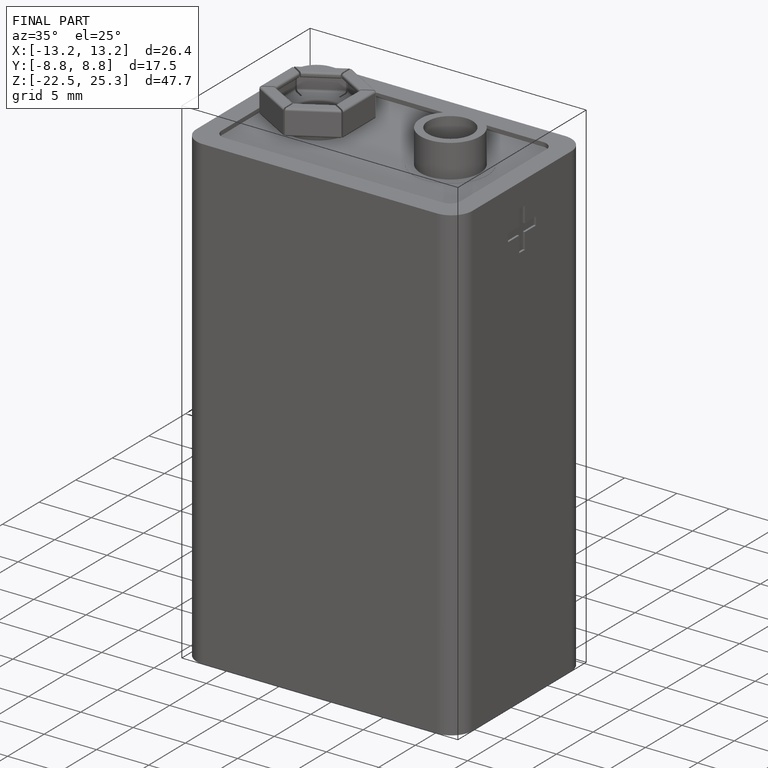
[diagram: finished part — iso view with bounding-box wireframe]
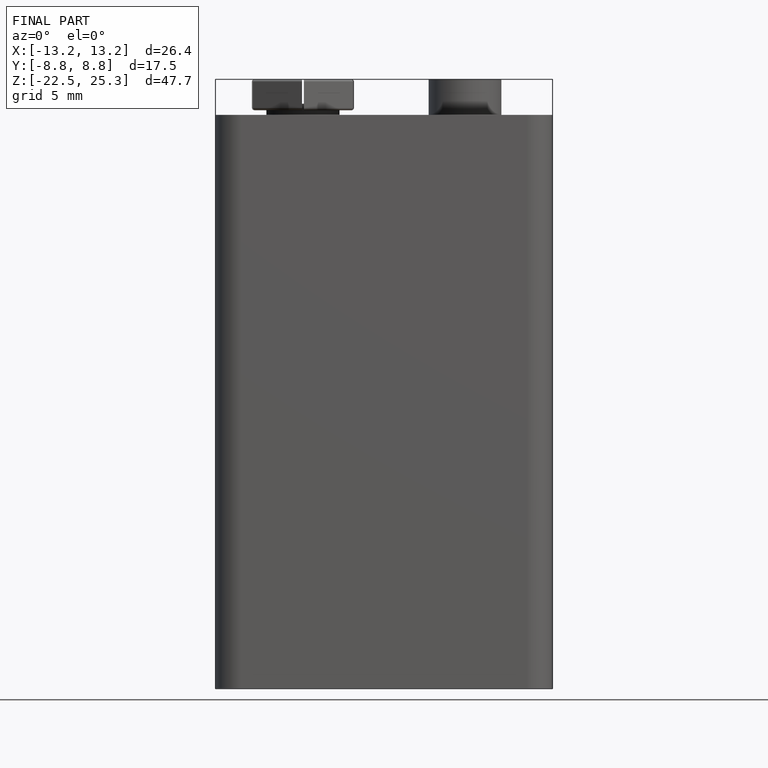
[diagram: finished part — front view with bounding-box wireframe]
